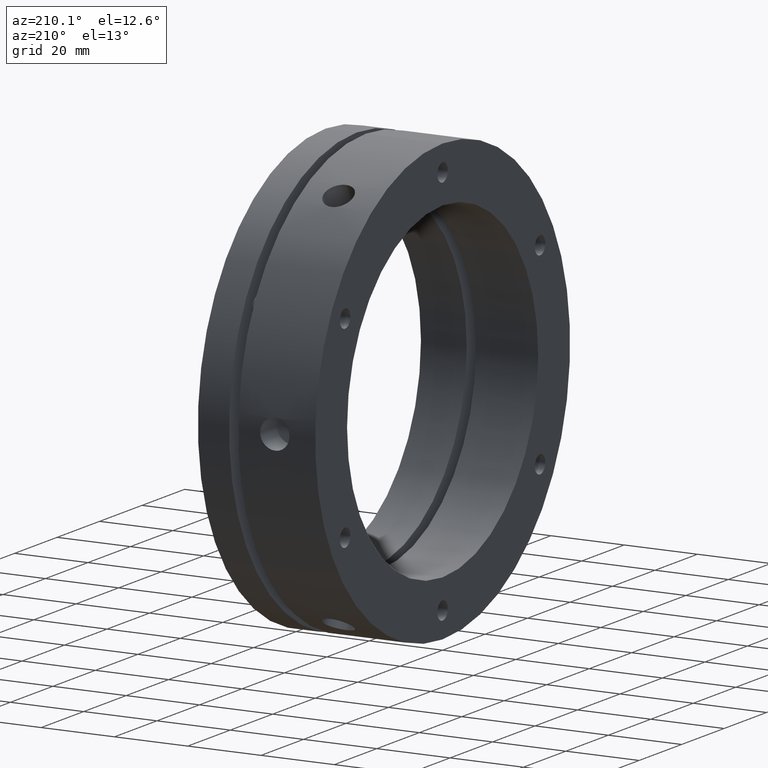
[diagram: clean part render]
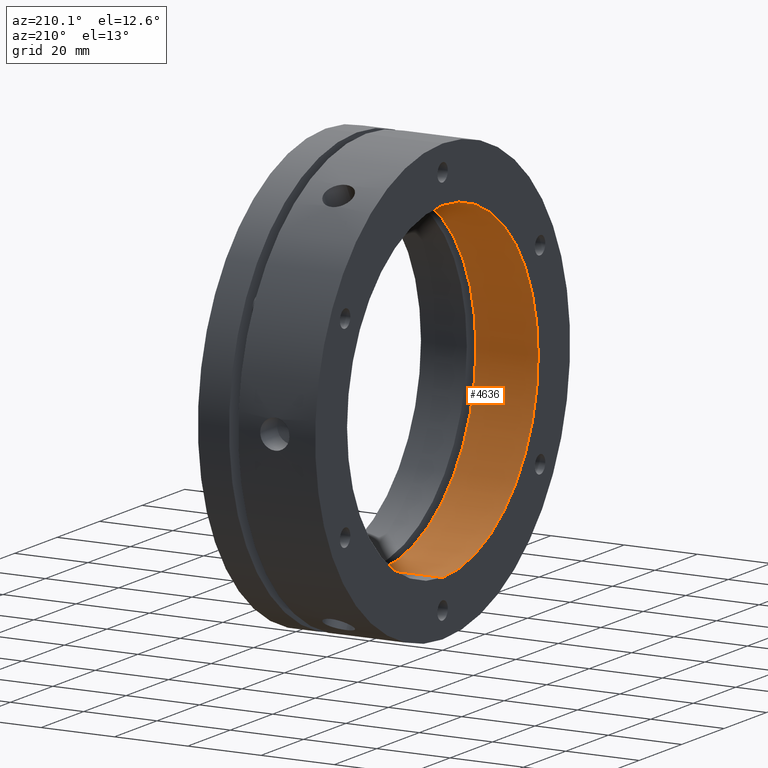
[diagram: same view with one face highlighted and labeled with its STEP entity id]
A machine part, auxiliary view. The second image highlights one B-rep face of the part: STEP entity #4636.
In plain terms, the highlighted cylindrical surface (partial cylindrical patch) has radius 45 mm, axis along (1, 0, 0).
Its self-contained STEP definition (entity closure, byte-faithful):
#421 = EDGE_LOOP ( 'NONE', ( #2174, #2173, #2172, #2171 ) ) ;
#736 = AXIS2_PLACEMENT_3D ( 'NONE', #3002, #3000, #2998 ) ;
#796 = AXIS2_PLACEMENT_3D ( 'NONE', #1720, #1721, #1722 ) ;
#797 = AXIS2_PLACEMENT_3D ( 'NONE', #1647, #1648, #1649 ) ;
#1628 = DIRECTION ( 'NONE',  ( 1.000000000000000000, 0.0000000000000000000, 0.0000000000000000000 ) ) ;
#1645 = CARTESIAN_POINT ( 'NONE',  ( 15.99999999999998600, 5.510910596163089600E-015, 45.00000000000000000 ) ) ;
#1647 = CARTESIAN_POINT ( 'NONE',  ( -1.387778780781445700E-014, 0.0000000000000000000, 0.0000000000000000000 ) ) ;
#1648 = DIRECTION ( 'NONE',  ( 1.000000000000000000, 0.0000000000000000000, 0.0000000000000000000 ) ) ;
#1649 = DIRECTION ( 'NONE',  ( 0.0000000000000000000, 0.0000000000000000000, -1.000000000000000000 ) ) ;
#1720 = CARTESIAN_POINT ( 'NONE',  ( 17.00000000000000700, 0.0000000000000000000, 0.0000000000000000000 ) ) ;
#1721 = DIRECTION ( 'NONE',  ( -1.000000000000000000, -0.0000000000000000000, -0.0000000000000000000 ) ) ;
#1722 = DIRECTION ( 'NONE',  ( 0.0000000000000000000, 0.0000000000000000000, -1.000000000000000000 ) ) ;
#1723 = CARTESIAN_POINT ( 'NONE',  ( 15.99999999999998600, 0.0000000000000000000, -45.00000000000000000 ) ) ;
#1725 = DIRECTION ( 'NONE',  ( 1.000000000000000000, 0.0000000000000000000, 0.0000000000000000000 ) ) ;
#1770 = CARTESIAN_POINT ( 'NONE',  ( 17.00000000000000700, 5.510910596163089600E-015, 45.00000000000000000 ) ) ;
#1787 = CARTESIAN_POINT ( 'NONE',  ( -1.387778780781445700E-014, 5.510910596163089600E-015, 45.00000000000000000 ) ) ;
#1788 = CARTESIAN_POINT ( 'NONE',  ( -1.387778780781445700E-014, 0.0000000000000000000, -45.00000000000000000 ) ) ;
#1838 = CARTESIAN_POINT ( 'NONE',  ( 17.00000000000000700, 0.0000000000000000000, -45.00000000000000000 ) ) ;
#2171 = ORIENTED_EDGE ( 'NONE', *, *, #4346, .F. ) ;
#2172 = ORIENTED_EDGE ( 'NONE', *, *, #4344, .F. ) ;
#2173 = ORIENTED_EDGE ( 'NONE', *, *, #4341, .T. ) ;
#2174 = ORIENTED_EDGE ( 'NONE', *, *, #4340, .F. ) ;
#2389 = CIRCLE ( 'NONE', #797, 45.00000000000000000 ) ;
#2390 = LINE ( 'NONE', #1723, #2399 ) ;
#2392 = LINE ( 'NONE', #1645, #2394 ) ;
#2394 = VECTOR ( 'NONE', #1628, 1000.000000000000000 ) ;
#2395 = CIRCLE ( 'NONE', #796, 45.00000000000000000 ) ;
#2399 = VECTOR ( 'NONE', #1725, 1000.000000000000000 ) ;
#2559 = FACE_OUTER_BOUND ( 'NONE', #421, .T. ) ;
#2569 = CYLINDRICAL_SURFACE ( 'NONE', #736, 45.00000000000000000 ) ;
#2998 = DIRECTION ( 'NONE',  ( 0.0000000000000000000, 0.0000000000000000000, -1.000000000000000000 ) ) ;
#3000 = DIRECTION ( 'NONE',  ( 1.000000000000000000, 0.0000000000000000000, 0.0000000000000000000 ) ) ;
#3002 = CARTESIAN_POINT ( 'NONE',  ( 15.99999999999998600, 0.0000000000000000000, 0.0000000000000000000 ) ) ;
#4340 = EDGE_CURVE ( 'NONE', #4380, #4383, #2389, .T. ) ;
#4341 = EDGE_CURVE ( 'NONE', #4380, #4356, #2392, .T. ) ;
#4344 = EDGE_CURVE ( 'NONE', #4447, #4356, #2395, .T. ) ;
#4346 = EDGE_CURVE ( 'NONE', #4383, #4447, #2390, .T. ) ;
#4356 = VERTEX_POINT ( 'NONE', #1770 ) ;
#4380 = VERTEX_POINT ( 'NONE', #1787 ) ;
#4383 = VERTEX_POINT ( 'NONE', #1788 ) ;
#4447 = VERTEX_POINT ( 'NONE', #1838 ) ;
#4636 = ADVANCED_FACE ( 'NONE', ( #2559 ), #2569, .F. ) ;